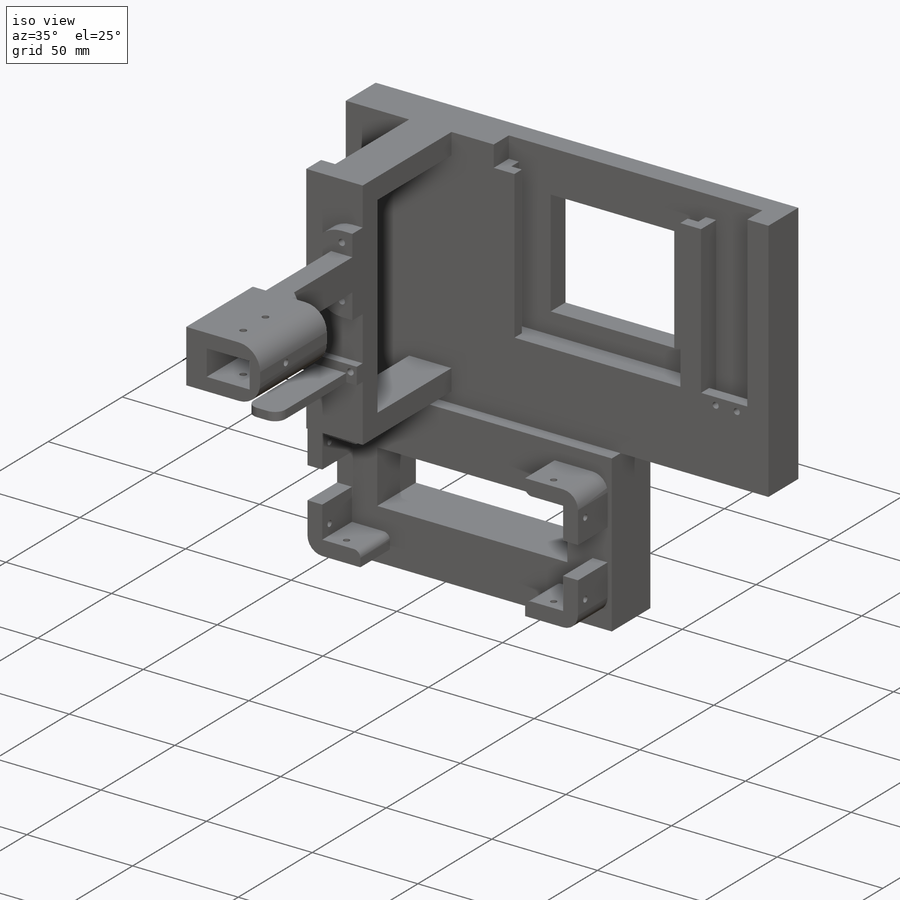
[diagram: iso view]
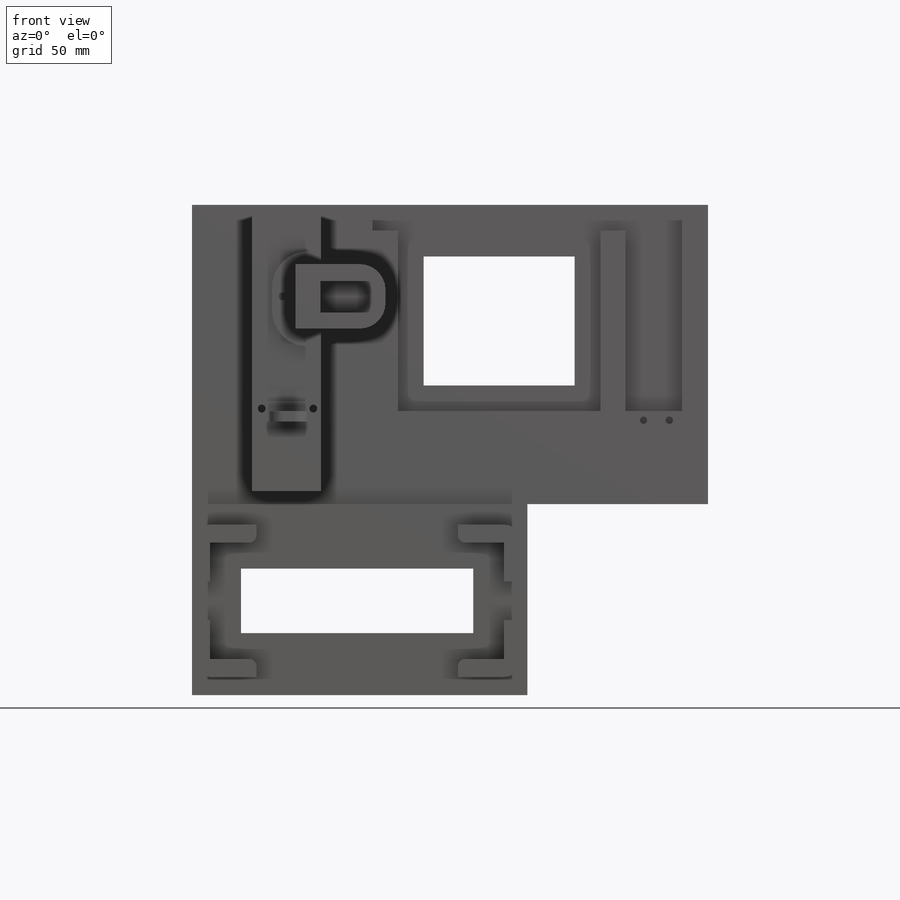
[diagram: front view]
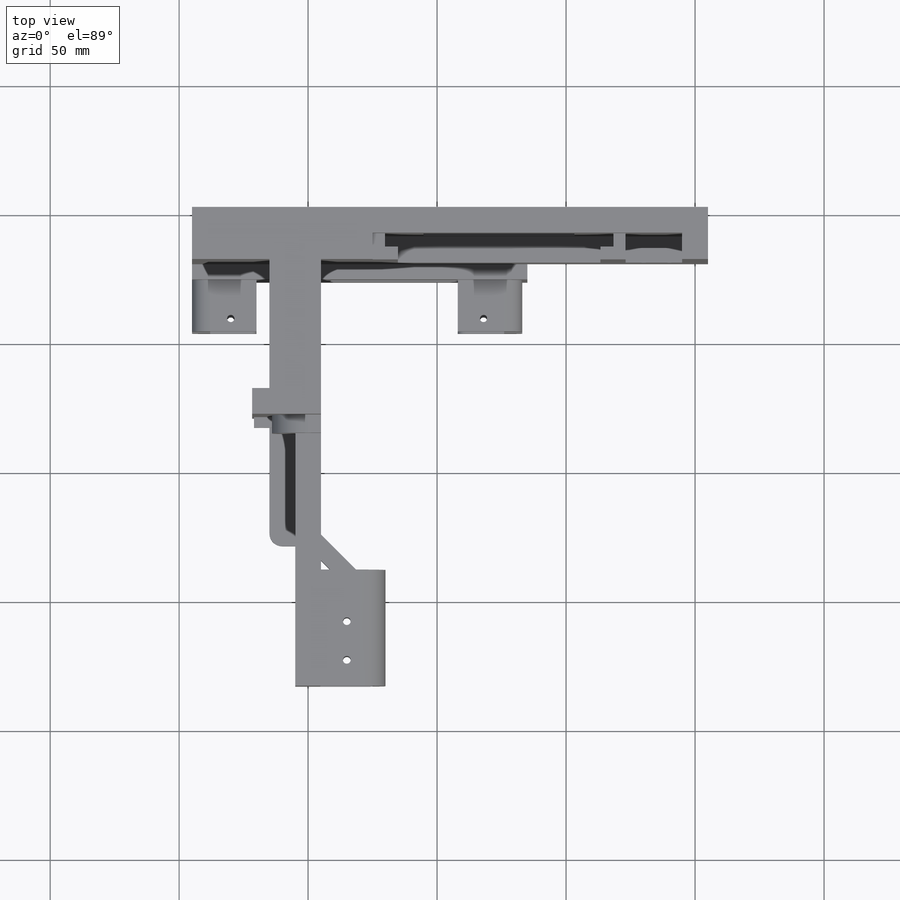
[diagram: top view]
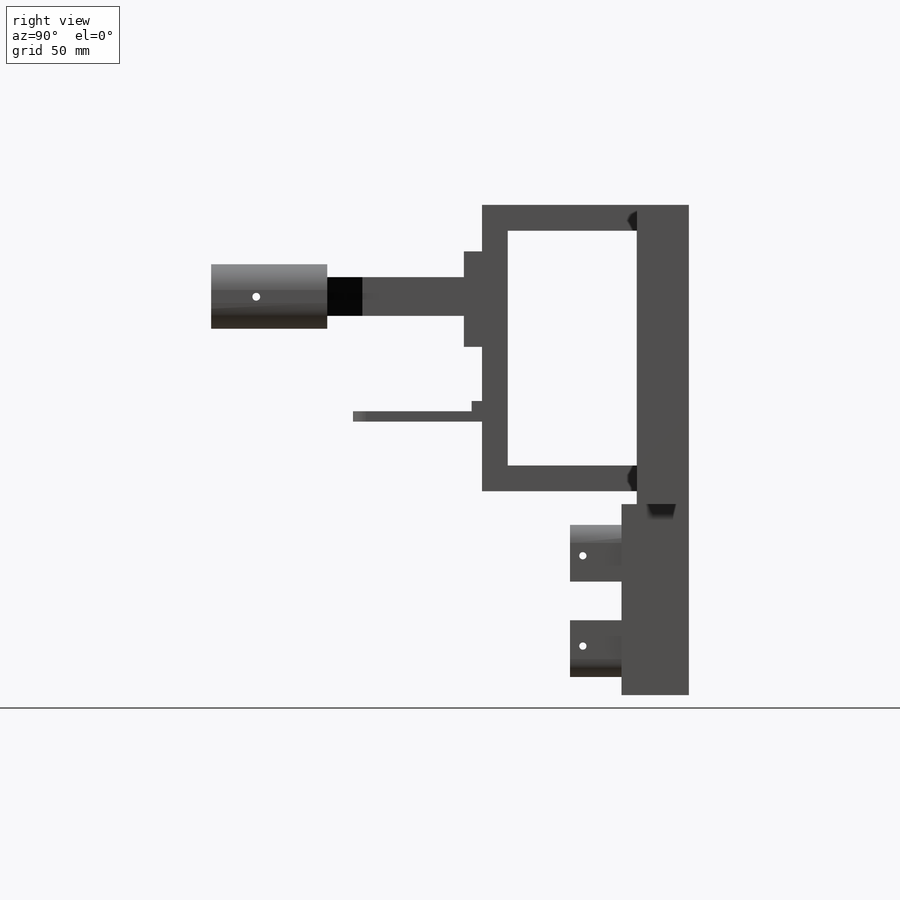
[diagram: right view]
SOLIDWORKS PART (.sldprt)
format: sldprt  version: not decoded by parser v0  size: 1,096,704 bytes
history: native  units: mm
features: sketch x27, extrude x16, fillet x14, cut_extrude x11, material x1 (+13 scaffold rows collapsed)
feature tree (82):
  scaffold x13  (default folders/planes/origin — collapsed)
  material  "Material <not specified>"
  sketch  "Sketch1"  dims[D1=0.0mm D2=190.0mm 80=80.0mm]
  extrude  "Boss-Extrude1"  Depth=10mm
  sketch  "Sketch2"  dims[D1=0.0mm D2=0.0mm D3=0.0mm D4=5.2mm D5=9.8mm D6=5.0mm D7=4.8mm D8=9.8mm D9=5.0mm D10=0.0mm D11=0.0mm D12=0.0mm D13=5.2mm D14=4.8mm D15=88.5mm D16=70.0mm]
  extrude  "Boss-Extrude2"  Depth=70mm
  sketch  "Sketch3"  dims[D1=10.0mm D2=10.0mm D3=10.0mm D4=10.0mm]
  cut_extrude  "Cut-Extrude1"  Depth=10mm
  sketch  "Sketch5"  dims[c1.D1=0.0mm c1.D2=0.0mm c1.D3=0.0mm c1.D4=0.0mm c2.D3=0.0mm]
  extrude  "Boss-Extrude3"  Depth=4mm
  sketch  "Sketch6"  dims[c1.D1=0.0mm c1.D2=0.0mm c1.D3=0.0mm c1.D4=0.0mm c1.D5=200.0mm c1.D6=190.0mm c1.D7=0.0mm c1.D8=0.0mm c2.D5=10.0mm]
  extrude  "Boss-Extrude5"  Depth=20.1999mm
  sketch  "Sketch7"  dims[D1=0.0mm D2=0.0mm D3=0.0mm D4=32.0mm]
  extrude  "Boss-Extrude6"  Depth=5.9mm
  sketch  "Sketch21"  dims[D1=0.0mm D2=0.0mm D3=4.7mm D4=0.0mm]
  cut_extrude  "Cut-Extrude7"  Depth=5.5mm
  sketch  "Sketch22"  dims[c1.D1=2.85mm c1.D2=2.85mm c1.D4=2.85mm c1.D3=3.5mm c2.D4=3.5mm c2.D5=5.0mm c2.D6=10.0mm]
  cut_extrude  "Cut-Extrude8"  Depth=5.5mm
  sketch  "Sketch23"  dims[D1=0.0mm D2=0.0mm D3=0.0mm D4=0.0mm]
  extrude  "Boss-Extrude8"  Depth=10.2mm
  sketch  "Sketch24"  dims[D1=0.0mm D2=0.0mm D3=0.0mm D4=70.0mm]
  cut_extrude  "Cut-Extrude9"  [1 undecoded]
  sketch  "Sketch25"  dims[c1.D1=0.0mm c1.D2=7.0mm c1.D3=0.0mm c1.D4=30.0mm c1.D5=0.0mm c1.D6=0.0mm c1.D7=7.0mm c1.D8=35.0mm c1.D9=0.0mm c1.D10=0.0mm c1.D11=10.0mm c1.D12=20.0mm c1.D13=70.0mm c2.D2=50.0mm c2.D13=10.0mm c3.D2=20.0mm c3.D10=0.0mm c3.D6=30.0mm c3.D7=5.0mm]
  extrude  "Boss-Extrude10"  Depth=50mm
  sketch  "Sketch26"  dims[D1=0.0mm D2=0.0mm D3=0.0mm D4=0.0mm]
  extrude  "Boss-Extrude11"  Depth=10mm
  sketch  "Sketch29"  dims[c1.D1=15.0mm c1.D2=15.0mm c1.D3=7.0mm c1.D4=25.0mm c1.D5=0.0mm c1.D6=7.0mm c1.D7=0.0mm c1.D8=0.0mm c1.D9=15.0mm c1.D10=7.0mm c1.D11=~68.89692mm c1.D12=0.0mm c1.D13=7.0mm c2.D11=25.0mm c2.D13=0.0mm c2.D14=0.0mm c2.D15=7.0mm c2.D16=15.0mm c3.D14=114.0mm c3.D17=2.0mm c3.D12=0.0mm c4.D17=7.0mm c4.D18=0.0mm c4.D19=0.0mm c4.D20=7.0mm c4.D21=15.0mm c4.D22=114.0mm c4.D23=0.0mm c4.D24=0.0mm c4.D25=7.0mm c4.D26=7.0mm c4.D27=15.0mm c4.D28=0.0mm c4.D29=45.0mm c4.D30=25.0mm c4.D31=25.0mm c4.D32=45.0mm c4.D33=15.0mm]
  extrude  "Boss-Extrude12"  Depth=20mm
  sketch  "Sketch30"  dims[c1.D1=2.8mm c1.D2=2.8mm c1.D3=2.8mm c1.D4=2.8mm c1.D5=2.8mm c1.D6=2.8mm c2.D2=15.0mm c2.D3=15.0mm c2.D5=15.0mm c2.D6=15.0mm]
  cut_extrude  "Cut-Extrude12"  Depth=60mm
  sketch  "Sketch31"  dims[c1.D1=2.8mm c1.D2=2.8mm c1.D3=2.8mm c1.D4=5.5024mm c1.D5=2.8mm c1.D6=2.8mm c2.D2=10.0mm c2.D3=15.0mm c2.D4=15.0mm c2.D6=10.0mm]
  cut_extrude  "Cut-Extrude13"  Depth=129mm
  sketch  "Sketch32"  dims[D1=12.0mm D2=12.0mm D3=10.0mm D4=10.0mm]
  cut_extrude  "Cut-Extrude14"  Depth=129mm
  fillet  "Fillet1"  Radius=7mm
  fillet  "Fillet2"  Radius=7mm
  fillet  "Fillet3"  Radius=7mm
  fillet  "Fillet4"  Radius=7mm
  fillet  "Fillet5"  Radius=3mm
  fillet  "Fillet6"  Radius=3mm
  fillet  "Fillet7"  Radius=3mm
  fillet  "Fillet8"  Radius=3mm
  sketch  "Sketch33"  dims[D1=5.0mm D2=15.0mm D3=4.0mm D4=27.0mm]
  extrude  "Boss-Extrude13"  Depth=50mm
  sketch  "Sketch36"  dims[c1.D1=28.0mm c1.D2=15.0mm c1.D3=25.0mm c1.D4=10.0mm c2.D3=0.0mm c2.D5=10.0mm]
  extrude  "Boss-Extrude15"  Depth=60mm
  sketch  "Sketch37"  dims[D1=5.0mm D2=25.0mm D3=0.0mm D4=35.0mm]
  extrude  "Boss-Extrude16"  Depth=10mm
  sketch  "Sketch38"  dims[D1=0.0mm D2=0.0mm D3=0.0mm 0=0.0mm D4=20.3mm D5=12.2mm D6=5.0mm D7=6.6mm D8=25.0mm]
  extrude  "Boss-Extrude17"  Depth=35mm
  sketch  "Sketch39"  dims[c1.D1=~5.053813mm c1.D2=3.0mm c1.D3=3.0mm c1.D4=3.0mm c1.D5=3.0mm c1.D6=3.0mm c2.D1=10.0mm c2.D4=25.0mm c2.D5=15.0mm c2.D6=15.0mm]
  cut_extrude  "Cut-Extrude15"  Depth=30mm
  sketch  "Sketch40"  dims[c1.D1=3.0mm c1.D2=3.0mm c1.D3=3.0mm c2.D2=27.5mm c2.D3=12.6mm]
  cut_extrude  "Cut-Extrude16"  Depth=49mm
  sketch  "Sketch41"  dims[c1.D1=0.0mm c1.D2=~5.250812mm c2.D2=180.0deg c2.D3=~0.29354mm c2.D1=0.0mm c3.D2=~5.465228mm c4.D2=180.0deg c4.D3=~15.611959mm c5.D3=0.0deg c6.D3=~0.887176mm c6.D2=0.0mm c7.D3=~5.672741mm c8.D3=0.0deg c8.D4=10.0mm c8.D5=10.0mm]
  extrude  "Boss-Extrude18"  [1 undecoded]
  sketch  "Sketch42"  dims[c1.D1=0.0mm c1.D2=7.0mm c1.D3=9.0mm c1.D4=0.0mm c2.D1=0.0mm]
  extrude  "Boss-Extrude19"  Depth=10mm
  sketch  "Sketch43"  dims[c1.D1=3.0mm c1.D2=3.0mm c1.D3=3.0mm c1.D4=3.0mm c1.D5=3.0mm c1.D6=3.0mm c1.D7=3.0mm c1.D8=3.0mm c1.D9=3.0mm c2.D4=5.0mm c2.D5=5.0mm c2.D6=5.0mm c2.D7=5.0mm c2.D8=5.0mm c2.D9=7.5mm]
  fillet  "Fillet9"  Radius=14mm
  fillet  "Fillet10"  Radius=14mm
  cut_extrude  "Cut-Extrude17"  Depth=30mm
  sketch  "Sketch44"  dims[c1.D1=0.0mm c1.D2=0.0mm c1.D3=4.0mm c1.D4=8.0mm c2.D1=0.0mm]
  extrude  "Boss-Extrude20"  Depth=21mm
  sketch  "Sketch45"  dims[c1.D1=3.0mm c1.D2=3.0mm c1.D3=3.0mm c1.D4=3.0mm c1.D5=3.0mm c1.D6=3.0mm c1.D7=3.0mm c1.D8=3.0mm c2.D1=3.0mm c2.D5=3.0mm c2.D3=3.0mm c2.D4=5.0mm c3.D5=5.0mm c3.D6=7.0mm c3.D8=4.0mm c3.D1=3.0mm c4.D5=5.0mm c4.D6=20.0mm]
  cut_extrude  "Cut-Extrude18"  Depth=20mm
  fillet  "Fillet11"  Radius=5mm
  fillet  "Fillet12"  Radius=5mm
  fillet  "Fillet16"  Radius=10mm
  fillet  "Fillet15"  Radius=10mm
decode coverage: 66 of 68 modeling features carry decoded parameters
note: ~ marks probable driven/reference dimensions
note: 2 parameter values undecoded
note: suppression state not decoded; provenance and decode notes live in map.json
